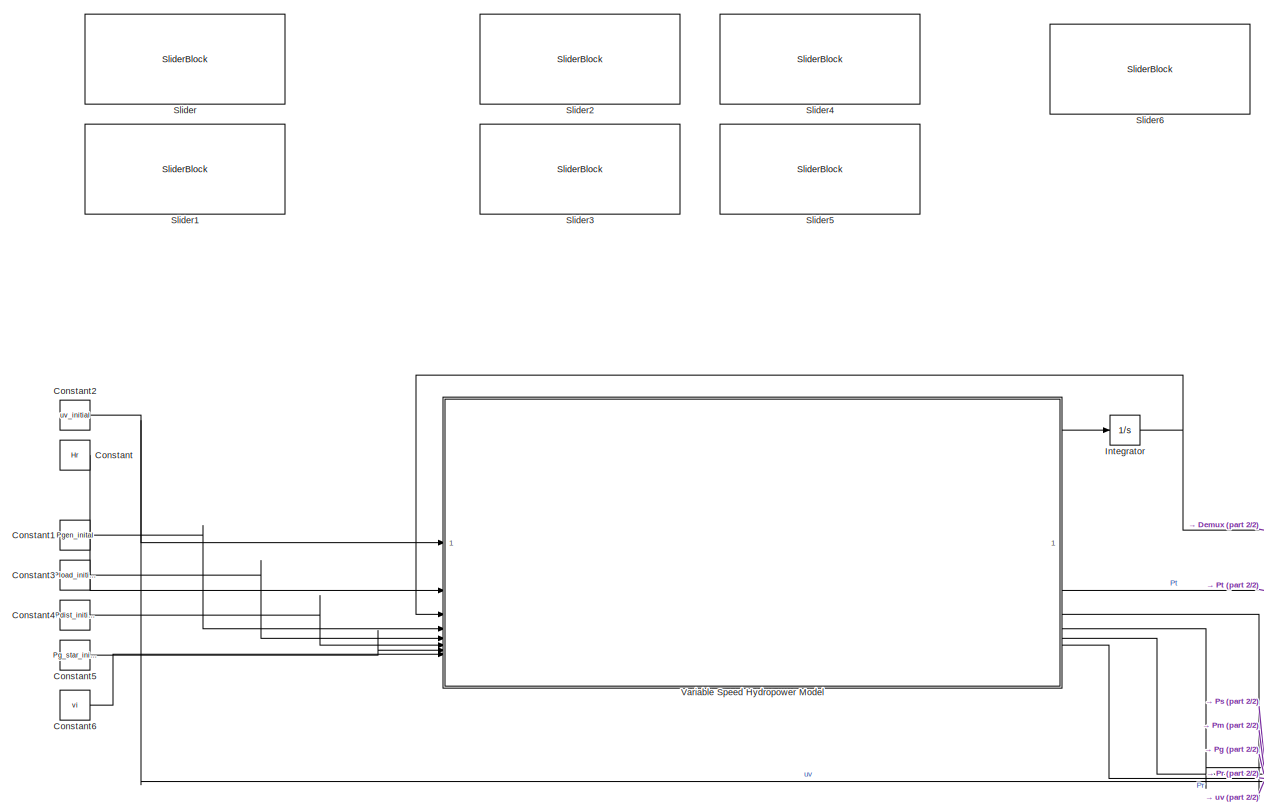
[diagram: root canvas - part 1/2, most of the canvas]
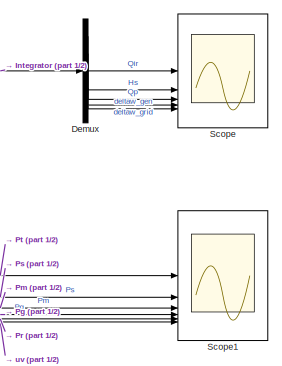
[diagram: root canvas - part 2/2, bottom right region]
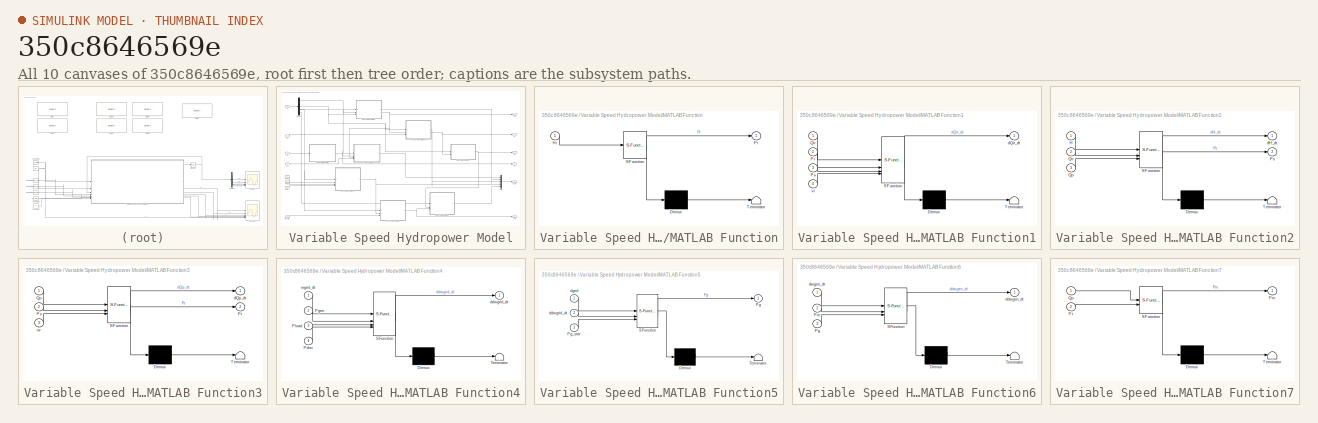
[diagram: thumbnail index - all 10 canvases of the model, root first then tree order]
MODEL slx_350c8646569e
KIND model
CONFIG AbsTol = auto
CONFIG EnableMultiTasking = off
CONFIG FixedStep = dt
CONFIG MaxStep = auto
CONFIG MinStep = auto
CONFIG RelTol = 1e-3
CONFIG SampleTimeConstraint = Unconstrained
CONFIG SolverName = ode45
CONFIG StartTime = 0.0
CONFIG StopTime = 200
BLOCK [Constant] Constant
  Value = Hr
BLOCK [Constant] Constant1
  Value = Pgen_inital
BLOCK [Constant] Constant2
  Value = uv_initial
BLOCK [Constant] Constant3
  Value = Pload_initial
BLOCK [Constant] Constant4
  Value = Pdist_initial
BLOCK [Constant] Constant5
  Value = Pg_star_inital
BLOCK [Constant] Constant6
  Value = vi
BLOCK [Demux] Demux
  Outputs = 5
BLOCK [Integrator] Integrator
  InitialCondition = x0
BLOCK [Scope] Scope
  Floating = off
  NumInputPorts = 5
  ScopeSpecificationString = Simulink.scopes.TimeScopeBlockCfg('CurrentConfiguration', extmgr.ConfigurationSet(extmgr.Configuration('Core','General UI',true),extmgr.Configuration('Core','Source UI',true),extmgr.Configuration('Sources','WiredSimulink',true),extmgr.Configuration('Visuals','Time Domain',true,'SerializedDisplays',{struct('MinYLimReal','-14.83393','MaxYLimReal','59.74633','YLabelReal','','MinYLimMag','0.00000','Ma...<+4763ch>
BLOCK [Scope] Scope1
  Floating = off
  NumInputPorts = 6
  ScopeSpecificationString = Simulink.scopes.TimeScopeBlockCfg('CurrentConfiguration', extmgr.ConfigurationSet(extmgr.Configuration('Core','General UI',true),extmgr.Configuration('Core','Source UI',true),extmgr.Configuration('Sources','WiredSimulink',true,'DataLoggingVariableName','ScopeData1'),extmgr.Configuration('Visuals','Time Domain',true,'SerializedDisplays',{struct('MinYLimReal','1037380.88441','MaxYLimReal','1973094.0...<+4824ch>
BLOCK [SliderBlock] Slider
  ScaleMax = 1
BLOCK [SliderBlock] Slider1
BLOCK [SliderBlock] Slider2
BLOCK [SliderBlock] Slider3
BLOCK [SliderBlock] Slider4
BLOCK [SliderBlock] Slider5
BLOCK [SliderBlock] Slider6
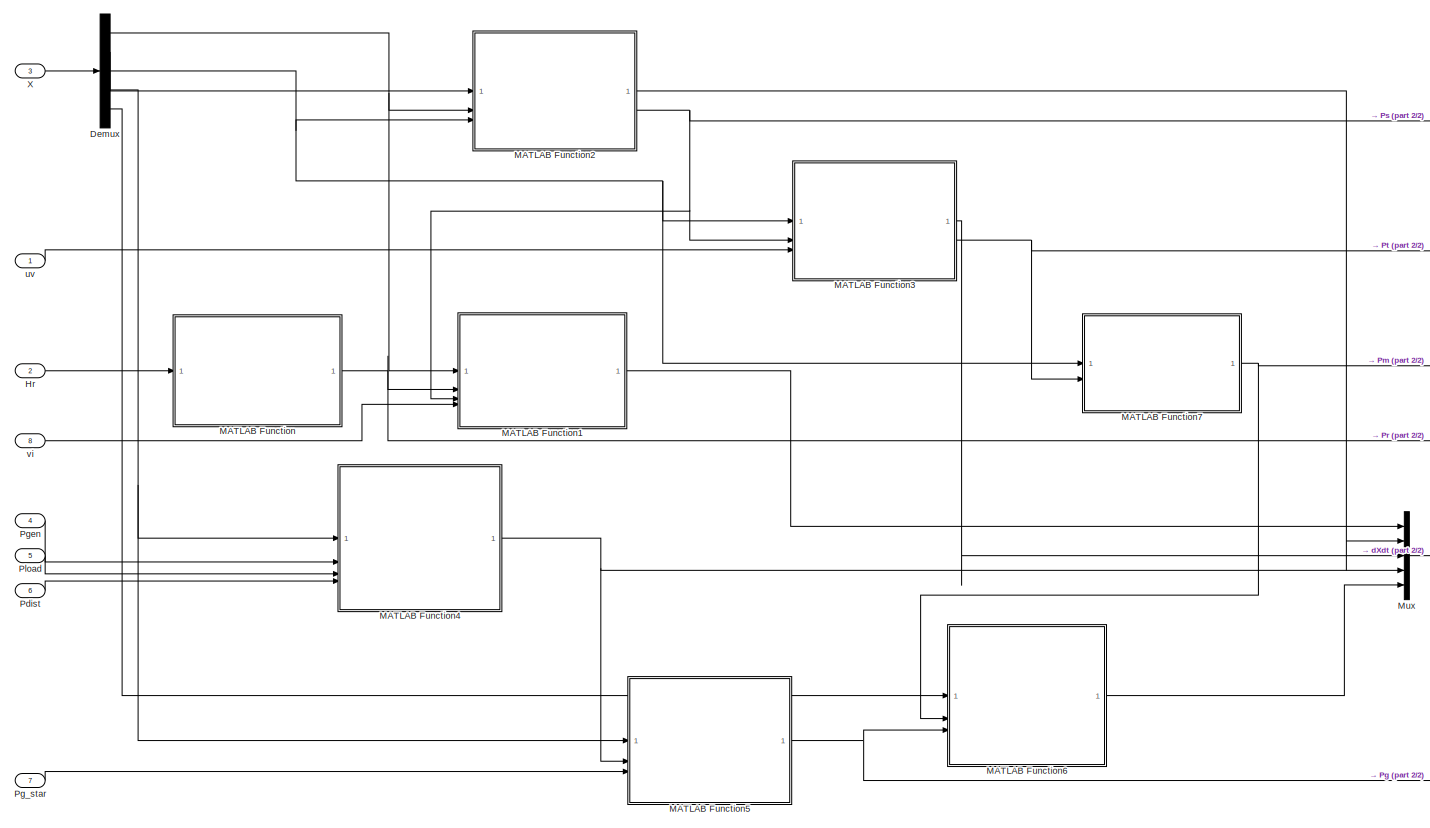
[diagram: Variable Speed Hydropower Model - part 1/2, most of the canvas]
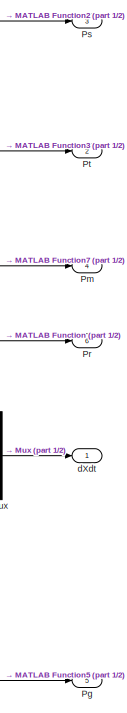
[diagram: Variable Speed Hydropower Model - part 2/2, right side, full height]
BLOCK [SubSystem] Variable Speed Hydropower Model
BLOCK [Demux] Variable Speed Hydropower Model/Demux
  Outputs = 5
BLOCK [Inport] Variable Speed Hydropower Model/Hr
  Port = 2
BLOCK [SubSystem] Variable Speed Hydropower Model/MATLAB Function
  ErrorFcn = Stateflow.Translate.translate
  LibrarySourceBlock = simulink/User-Defined\nFunctions/MATLAB Function
  PermitHierarchicalResolution = ExplicitOnly
  SFBlockType = MATLAB Function
  TreatAsAtomicUnit = on
BLOCK [Demux] Variable Speed Hydropower Model/MATLAB Function/ Demux 
  Outputs = 1
BLOCK [S-Function] Variable Speed Hydropower Model/MATLAB Function/ SFunction 
  EnableBusSupport = on
  FunctionName = sf_sfun
  Parameters = Pa,g,rho
  PortCounts = [1 2]
  SFcnIsStateOwnerBlock = off
  SFunctionDeploymentMode = off
  Tag = Stateflow S-Function 2
BLOCK [Terminator] Variable Speed Hydropower Model/MATLAB Function/ Terminator 
BLOCK [Inport] Variable Speed Hydropower Model/MATLAB Function/Hr
BLOCK [Outport] Variable Speed Hydropower Model/MATLAB Function/Pr
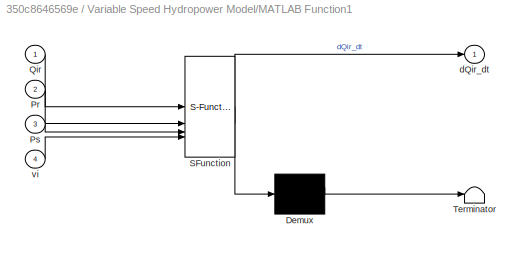
BLOCK [SubSystem] Variable Speed Hydropower Model/MATLAB Function1
  ErrorFcn = Stateflow.Translate.translate
  LibrarySourceBlock = simulink/User-Defined\nFunctions/MATLAB Function
  PermitHierarchicalResolution = ExplicitOnly
  SFBlockType = MATLAB Function
  TreatAsAtomicUnit = on
BLOCK [Demux] Variable Speed Hydropower Model/MATLAB Function1/ Demux 
  Outputs = 1
BLOCK [S-Function] Variable Speed Hydropower Model/MATLAB Function1/ SFunction 
  EnableBusSupport = on
  FunctionName = sf_sfun
  Parameters = Dir,Hir,Lir,f,g,rho
  PortCounts = [4 2]
  SFcnIsStateOwnerBlock = off
  SFunctionDeploymentMode = off
  Tag = Stateflow S-Function 1
BLOCK [Terminator] Variable Speed Hydropower Model/MATLAB Function1/ Terminator 
BLOCK [Inport] Variable Speed Hydropower Model/MATLAB Function1/Pr
  Port = 2
BLOCK [Inport] Variable Speed Hydropower Model/MATLAB Function1/Ps
  Port = 3
BLOCK [Inport] Variable Speed Hydropower Model/MATLAB Function1/Qir
BLOCK [Outport] Variable Speed Hydropower Model/MATLAB Function1/dQir_dt
BLOCK [Inport] Variable Speed Hydropower Model/MATLAB Function1/vi
  Port = 4
BLOCK [SubSystem] Variable Speed Hydropower Model/MATLAB Function2
  ErrorFcn = Stateflow.Translate.translate
  LibrarySourceBlock = simulink/User-Defined\nFunctions/MATLAB Function
  PermitHierarchicalResolution = ExplicitOnly
  SFBlockType = MATLAB Function
  TreatAsAtomicUnit = on
BLOCK [Demux] Variable Speed Hydropower Model/MATLAB Function2/ Demux 
  Outputs = 1
BLOCK [S-Function] Variable Speed Hydropower Model/MATLAB Function2/ SFunction 
  EnableBusSupport = on
  FunctionName = sf_sfun
  Parameters = Ds,Pa,g,rho
  PortCounts = [3 3]
  SFcnIsStateOwnerBlock = off
  SFunctionDeploymentMode = off
  Tag = Stateflow S-Function 3
BLOCK [Terminator] Variable Speed Hydropower Model/MATLAB Function2/ Terminator 
BLOCK [Inport] Variable Speed Hydropower Model/MATLAB Function2/H
BLOCK [Outport] Variable Speed Hydropower Model/MATLAB Function2/Ps
  Port = 2
BLOCK [Inport] Variable Speed Hydropower Model/MATLAB Function2/Qir
  Port = 2
BLOCK [Inport] Variable Speed Hydropower Model/MATLAB Function2/Qp
  Port = 3
BLOCK [Outport] Variable Speed Hydropower Model/MATLAB Function2/dH_dt
BLOCK [SubSystem] Variable Speed Hydropower Model/MATLAB Function3
  ErrorFcn = Stateflow.Translate.translate
  LibrarySourceBlock = simulink/User-Defined\nFunctions/MATLAB Function
  PermitHierarchicalResolution = ExplicitOnly
  SFBlockType = MATLAB Function
  TreatAsAtomicUnit = on
BLOCK [Demux] Variable Speed Hydropower Model/MATLAB Function3/ Demux 
  Outputs = 1
BLOCK [S-Function] Variable Speed Hydropower Model/MATLAB Function3/ SFunction 
  EnableBusSupport = on
  FunctionName = sf_sfun
  Parameters = Cv,Dp,Hp,Lp,Pa,f,g,rho
  PortCounts = [3 3]
  SFcnIsStateOwnerBlock = off
  SFunctionDeploymentMode = off
  Tag = Stateflow S-Function 4
BLOCK [Terminator] Variable Speed Hydropower Model/MATLAB Function3/ Terminator 
BLOCK [Inport] Variable Speed Hydropower Model/MATLAB Function3/Ps
  Port = 2
BLOCK [Outport] Variable Speed Hydropower Model/MATLAB Function3/Pt
  Port = 2
BLOCK [Inport] Variable Speed Hydropower Model/MATLAB Function3/Qp
BLOCK [Outport] Variable Speed Hydropower Model/MATLAB Function3/dQp_dt
BLOCK [Inport] Variable Speed Hydropower Model/MATLAB Function3/uv
  Port = 3
BLOCK [SubSystem] Variable Speed Hydropower Model/MATLAB Function4
  ErrorFcn = Stateflow.Translate.translate
  LibrarySourceBlock = simulink/User-Defined\nFunctions/MATLAB Function
  PermitHierarchicalResolution = ExplicitOnly
  SFBlockType = MATLAB Function
  TreatAsAtomicUnit = on
BLOCK [Demux] Variable Speed Hydropower Model/MATLAB Function4/ Demux 
  Outputs = 1
BLOCK [S-Function] Variable Speed Hydropower Model/MATLAB Function4/ SFunction 
  EnableBusSupport = on
  FunctionName = sf_sfun
  Parameters = Dm,Hg,Sn,wgridref
  PortCounts = [4 2]
  SFcnIsStateOwnerBlock = off
  SFunctionDeploymentMode = off
  Tag = Stateflow S-Function 5
BLOCK [Terminator] Variable Speed Hydropower Model/MATLAB Function4/ Terminator 
BLOCK [Inport] Variable Speed Hydropower Model/MATLAB Function4/Pdist
  Port = 4
BLOCK [Inport] Variable Speed Hydropower Model/MATLAB Function4/Pgen
  Port = 2
BLOCK [Inport] Variable Speed Hydropower Model/MATLAB Function4/Pload
  Port = 3
BLOCK [Outport] Variable Speed Hydropower Model/MATLAB Function4/ddwgrid_dt
BLOCK [Inport] Variable Speed Hydropower Model/MATLAB Function4/wgrid_dt
BLOCK [SubSystem] Variable Speed Hydropower Model/MATLAB Function5
  ErrorFcn = Stateflow.Translate.translate
  LibrarySourceBlock = simulink/User-Defined\nFunctions/MATLAB Function
  PermitHierarchicalResolution = ExplicitOnly
  SFBlockType = MATLAB Function
  TreatAsAtomicUnit = on
BLOCK [Demux] Variable Speed Hydropower Model/MATLAB Function5/ Demux 
  Outputs = 1
BLOCK [S-Function] Variable Speed Hydropower Model/MATLAB Function5/ SFunction 
  EnableBusSupport = on
  FunctionName = sf_sfun
  Parameters = Kvsgd,Kvsgp
  PortCounts = [3 2]
  SFcnIsStateOwnerBlock = off
  SFunctionDeploymentMode = off
  Tag = Stateflow S-Function 6
BLOCK [Terminator] Variable Speed Hydropower Model/MATLAB Function5/ Terminator 
BLOCK [Outport] Variable Speed Hydropower Model/MATLAB Function5/Pg
BLOCK [Inport] Variable Speed Hydropower Model/MATLAB Function5/Pg_star
  Port = 3
BLOCK [Inport] Variable Speed Hydropower Model/MATLAB Function5/ddwgrid_dt
  Port = 2
BLOCK [Inport] Variable Speed Hydropower Model/MATLAB Function5/dgrid
BLOCK [SubSystem] Variable Speed Hydropower Model/MATLAB Function6
  ErrorFcn = Stateflow.Translate.translate
  LibrarySourceBlock = simulink/User-Defined\nFunctions/MATLAB Function
  PermitHierarchicalResolution = ExplicitOnly
  SFBlockType = MATLAB Function
  TreatAsAtomicUnit = on
BLOCK [Demux] Variable Speed Hydropower Model/MATLAB Function6/ Demux 
  Outputs = 1
BLOCK [S-Function] Variable Speed Hydropower Model/MATLAB Function6/ SFunction 
  EnableBusSupport = on
  FunctionName = sf_sfun
  Parameters = D,H,nominal_power,wgen_nom
  PortCounts = [3 2]
  SFcnIsStateOwnerBlock = off
  SFunctionDeploymentMode = off
  Tag = Stateflow S-Function 7
BLOCK [Terminator] Variable Speed Hydropower Model/MATLAB Function6/ Terminator 
BLOCK [Inport] Variable Speed Hydropower Model/MATLAB Function6/Pg
  Port = 3
BLOCK [Inport] Variable Speed Hydropower Model/MATLAB Function6/Pm
  Port = 2
BLOCK [Outport] Variable Speed Hydropower Model/MATLAB Function6/ddwgen_dt
BLOCK [Inport] Variable Speed Hydropower Model/MATLAB Function6/dwgen_dt
BLOCK [SubSystem] Variable Speed Hydropower Model/MATLAB Function7
  ErrorFcn = Stateflow.Translate.translate
  LibrarySourceBlock = simulink/User-Defined\nFunctions/MATLAB Function
  PermitHierarchicalResolution = ExplicitOnly
  SFBlockType = MATLAB Function
  TreatAsAtomicUnit = on
BLOCK [Demux] Variable Speed Hydropower Model/MATLAB Function7/ Demux 
  Outputs = 1
BLOCK [S-Function] Variable Speed Hydropower Model/MATLAB Function7/ SFunction 
  EnableBusSupport = on
  FunctionName = sf_sfun
  Parameters = Pa,eta
  PortCounts = [2 2]
  SFcnIsStateOwnerBlock = off
  SFunctionDeploymentMode = off
  Tag = Stateflow S-Function 8
BLOCK [Terminator] Variable Speed Hydropower Model/MATLAB Function7/ Terminator 
BLOCK [Outport] Variable Speed Hydropower Model/MATLAB Function7/Pm
BLOCK [Inport] Variable Speed Hydropower Model/MATLAB Function7/Pt
  Port = 2
BLOCK [Inport] Variable Speed Hydropower Model/MATLAB Function7/Qp
BLOCK [Mux] Variable Speed Hydropower Model/Mux
  DisplayOption = bar
  Inputs = 5
BLOCK [Inport] Variable Speed Hydropower Model/Pdist
  Port = 6
BLOCK [Outport] Variable Speed Hydropower Model/Pg
  Port = 5
BLOCK [Inport] Variable Speed Hydropower Model/Pg_star
  Port = 7
BLOCK [Inport] Variable Speed Hydropower Model/Pgen
  Port = 4
BLOCK [Inport] Variable Speed Hydropower Model/Pload
  Port = 5
BLOCK [Outport] Variable Speed Hydropower Model/Pm
  Port = 4
BLOCK [Outport] Variable Speed Hydropower Model/Pr
  Port = 6
BLOCK [Outport] Variable Speed Hydropower Model/Ps
  Port = 3
BLOCK [Outport] Variable Speed Hydropower Model/Pt
  Port = 2
BLOCK [Inport] Variable Speed Hydropower Model/X
  Port = 3
BLOCK [Outport] Variable Speed Hydropower Model/dXdt
BLOCK [Inport] Variable Speed Hydropower Model/uv
BLOCK [Inport] Variable Speed Hydropower Model/vi
  Port = 8
LINE Constant1:1 -> Variable Speed Hydropower Model:4
NET Constant2:1 -> Scope1:6, Variable Speed Hydropower Model:1
LINE Constant3:1 -> Variable Speed Hydropower Model:5
LINE Constant4:1 -> Variable Speed Hydropower Model:6
LINE Constant5:1 -> Variable Speed Hydropower Model:7
LINE Constant6:1 -> Variable Speed Hydropower Model:8
LINE Constant:1 -> Variable Speed Hydropower Model:2
LINE Demux:1 -> Scope:1
LINE Demux:2 -> Scope:2
LINE Demux:3 -> Scope:3
LINE Demux:4 -> Scope:4
LINE Demux:5 -> Scope:5
NET Integrator:1 -> Demux:1, Variable Speed Hydropower Model:3
NET Variable Speed Hydropower Model/Demux:1 -> Variable Speed Hydropower Model/MATLAB Function1:1, Variable Speed Hydropower Model/MATLAB Function2:2
LINE Variable Speed Hydropower Model/Demux:2 -> Variable Speed Hydropower Model/MATLAB Function2:1
NET Variable Speed Hydropower Model/Demux:3 -> Variable Speed Hydropower Model/MATLAB Function2:3, Variable Speed Hydropower Model/MATLAB Function3:1, Variable Speed Hydropower Model/MATLAB Function7:1
NET Variable Speed Hydropower Model/Demux:4 -> Variable Speed Hydropower Model/MATLAB Function4:1, Variable Speed Hydropower Model/MATLAB Function5:1
LINE Variable Speed Hydropower Model/Demux:5 -> Variable Speed Hydropower Model/MATLAB Function6:1
LINE Variable Speed Hydropower Model/Hr:1 -> Variable Speed Hydropower Model/MATLAB Function:1
LINE Variable Speed Hydropower Model/MATLAB Function1:1 -> Variable Speed Hydropower Model/Mux:1
LINE Variable Speed Hydropower Model/MATLAB Function2:1 -> Variable Speed Hydropower Model/Mux:2
NET Variable Speed Hydropower Model/MATLAB Function2:2 -> Variable Speed Hydropower Model/MATLAB Function1:3, Variable Speed Hydropower Model/MATLAB Function3:2, Variable Speed Hydropower Model/Ps:1
LINE Variable Speed Hydropower Model/MATLAB Function3:1 -> Variable Speed Hydropower Model/Mux:3
NET Variable Speed Hydropower Model/MATLAB Function3:2 -> Variable Speed Hydropower Model/MATLAB Function7:2, Variable Speed Hydropower Model/Pt:1
NET Variable Speed Hydropower Model/MATLAB Function4:1 -> Variable Speed Hydropower Model/MATLAB Function5:2, Variable Speed Hydropower Model/Mux:4
NET Variable Speed Hydropower Model/MATLAB Function5:1 -> Variable Speed Hydropower Model/MATLAB Function6:3, Variable Speed Hydropower Model/Pg:1
LINE Variable Speed Hydropower Model/MATLAB Function6:1 -> Variable Speed Hydropower Model/Mux:5
NET Variable Speed Hydropower Model/MATLAB Function7:1 -> Variable Speed Hydropower Model/MATLAB Function6:2, Variable Speed Hydropower Model/Pm:1
NET Variable Speed Hydropower Model/MATLAB Function:1 -> Variable Speed Hydropower Model/MATLAB Function1:2, Variable Speed Hydropower Model/Pr:1
LINE Variable Speed Hydropower Model/Mux:1 -> Variable Speed Hydropower Model/dXdt:1
LINE Variable Speed Hydropower Model/Pdist:1 -> Variable Speed Hydropower Model/MATLAB Function4:4
LINE Variable Speed Hydropower Model/Pg_star:1 -> Variable Speed Hydropower Model/MATLAB Function5:3
LINE Variable Speed Hydropower Model/Pgen:1 -> Variable Speed Hydropower Model/MATLAB Function4:2
LINE Variable Speed Hydropower Model/Pload:1 -> Variable Speed Hydropower Model/MATLAB Function4:3
LINE Variable Speed Hydropower Model/X:1 -> Variable Speed Hydropower Model/Demux:1
LINE Variable Speed Hydropower Model/uv:1 -> Variable Speed Hydropower Model/MATLAB Function3:3
LINE Variable Speed Hydropower Model/vi:1 -> Variable Speed Hydropower Model/MATLAB Function1:4
LINE Variable Speed Hydropower Model:1 -> Integrator:1
LINE Variable Speed Hydropower Model:2 -> Scope1:1
LINE Variable Speed Hydropower Model:3 -> Scope1:2
LINE Variable Speed Hydropower Model:4 -> Scope1:3
LINE Variable Speed Hydropower Model:5 -> Scope1:4
LINE Variable Speed Hydropower Model:6 -> Scope1:5
note: NET lines group one-source signal fan-out (src -> all destinations, sorted); 1:1 wires keep LINE
CHART Variable Speed Hydropower Model/MATLAB Function6 states=1 transitions=1
  STATE_LABEL 'eML_blk_kernel()'
  STATE_LABEL 'SCRIPT:\nfunction ddwgen_dt = fcn(dwgen_dt, Pm, Pg, D, wgen_nom, nominal_power, H)\n\npm_pu = Pm/nominal_power;\nwgen = dwgen_dt + wgen_nom; % wgen_nom should be wgrid according to equation!\n\nddwgen_dt = 1/(2*H*wgen)*(pm_pu - Pg - D * dwgen_dt);\n'
CHART Variable Speed Hydropower Model/MATLAB Function7 states=1 transitions=1
  STATE_LABEL 'eML_blk_kernel()'
  STATE_LABEL 'SCRIPT:\nfunction Pm = turbine_model(Qp, Pt, eta, Pa)\n\nPm = eta*(Pt - Pa)*Qp;                   % Mechanical powe\n'
CHART Variable Speed Hydropower Model/MATLAB Function1 states=1 transitions=1
  STATE_LABEL 'eML_blk_kernel()'
  STATE_LABEL 'SCRIPT:\nfunction dQir_dt = inlet_race_model(Qir, Pr, Ps, rho, g, f, Hir, Lir, Dir, vi)\n\n    % Geometry\n    Air = pi*(Dir/2)^2;          % Area of cross section of inlet pipe\n\n    Hf = f*Lir*vi^2/(Dir*2*g);   % frictional head loss\n\n    % Inlet race differential equation (volumetric flow)\n    dQir_dt = Air/(rho*Lir)*(Pr - Ps) - pi*Dir*f/(8*Air^2)*Qir*abs(Qir) + g*Air*(Hir-Hf)/Lir;\n'
CHART Variable Speed Hydropower Model/MATLAB Function states=1 transitions=1
  STATE_LABEL 'eML_blk_kernel()'
  STATE_LABEL 'SCRIPT:\nfunction Pr = reservoir_model(Hr, rho, g, Pa)\n\nPr = Pa + rho*g*Hr;                % Pressure start of inlet race\n'
CHART Variable Speed Hydropower Model/MATLAB Function2 states=1 transitions=1
  STATE_LABEL 'eML_blk_kernel()'
  STATE_LABEL 'SCRIPT:\nfunction [dH_dt, Ps] = surge_tank_model(H, Qir, Qp, Ds, Pa, rho, g)\n\n    % Geometry\n    As = pi*(Ds/2)^2;            % Area of cross section of surge tank\n\n    % Algebraic equations\n    Qs = (Qir - Qp);             % Volumetric flow into surge tank\n    Ps = Pa + rho*g*H;           % Pressure at end of inlet race\n\n    % Surge tank differential equation (surge tank water height)\n    dH_dt = ...<+7ch>'
CHART Variable Speed Hydropower Model/MATLAB Function3 states=1 transitions=1
  STATE_LABEL 'eML_blk_kernel()'
  STATE_LABEL 'SCRIPT:\nfunction [dQp_dt, Pt] = penstock_model(Qp, Ps, uv, rho, g, f, Cv, Hp, Lp, Dp, Pa)\n\n    % Geometry\n    Ap = pi*(Dp/2)^2;            % Area of cross section of penstock pipe\n\n    % Algebraic equations\n    Pt = Pa*(1 + (Qp/(Cv*uv))^2);    % Pressure at end of penstock\n\n    % Penstock differential equation (volumetric  flow)\n    dQp_dt = Ap/(rho*Lp)*(Ps - Pt) - pi*Dp*f/(8*Ap^2)*Qp*abs(Qp) + g*...<+10ch>'
CHART Variable Speed Hydropower Model/MATLAB Function4 states=1 transitions=1
  STATE_LABEL 'eML_blk_kernel()'
  STATE_LABEL 'SCRIPT:\nfunction ddwgrid_dt = grid_model(wgrid_dt, Pgen, Pload, Pdist, wgridref, Hg, Sn, Dm)\n\n\nddwgrid_dt = wgridref/(2*Hg*Sn)*(Pgen - Pload + Pdist - Dm*wgrid_dt);'
CHART Variable Speed Hydropower Model/MATLAB Function5 states=1 transitions=1
  STATE_LABEL 'eML_blk_kernel()'
  STATE_LABEL 'SCRIPT:\nfunction Pg = vsg_model(dgrid, ddwgrid_dt, Pg_star, Kvsgp, Kvsgd)\n\nPg = Kvsgp*dgrid + Kvsgd*ddwgrid_dt + Pg_star;\n'
CHART  states=0 transitions=0
CHART  states=0 transitions=0
CHART  states=0 transitions=0
CHART  states=0 transitions=0
CHART  states=0 transitions=0
CHART  states=0 transitions=0
CHART  states=0 transitions=0
CHART  states=0 transitions=0
